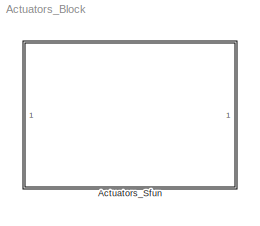
MODEL Actuators_Block
KIND library
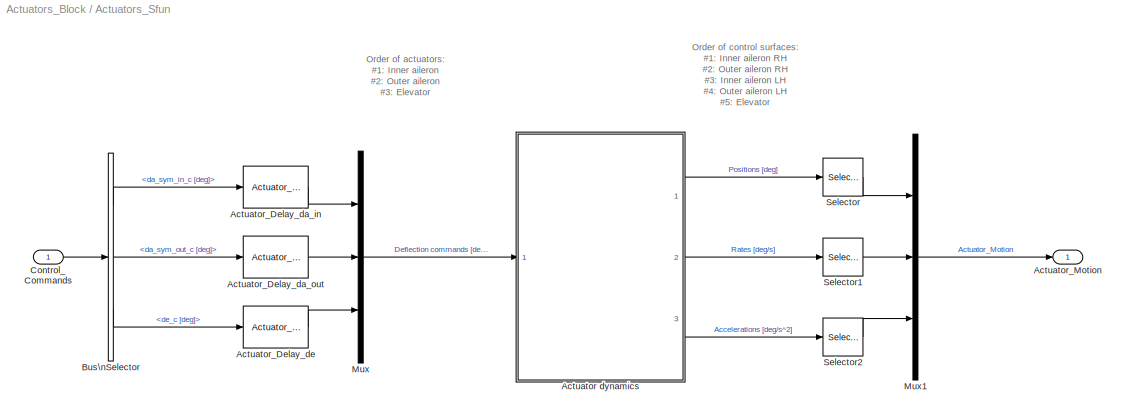
BLOCK [SubSystem] Actuators_Sfun
  Ports = [1, 1]
  RequestExecContextInheritance = off
  SID = 12
  Variant = off
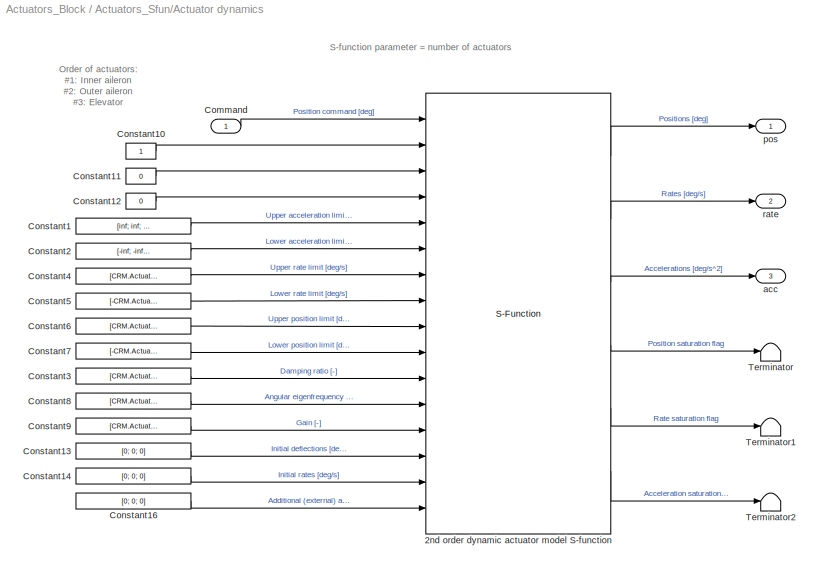
BLOCK [SubSystem] Actuators_Sfun/Actuator dynamics
  Ports = [1, 3]
  RequestExecContextInheritance = off
  SID = 26
  Variant = off
BLOCK [S-Function] Actuators_Sfun/Actuator dynamics/2nd order dynamic actuator model S-function
  EnableBusSupport = off
  FunctionName = sfun_second_order_wLimits
  Parameters = N_Actuators
  Ports = [16, 6]
  SFcnIsStateOwnerBlock = off
  SFunctionDeploymentMode = off
  SID = 64
BLOCK [Inport] Actuators_Sfun/Actuator dynamics/Command
  IconDisplay = Port number
  SID = 27
BLOCK [Constant] Actuators_Sfun/Actuator dynamics/Constant1
  SID = 28
  Value = [inf; inf; inf]
BLOCK [Constant] Actuators_Sfun/Actuator dynamics/Constant10
  OutDataTypeStr = boolean
  SID = 29
BLOCK [Constant] Actuators_Sfun/Actuator dynamics/Constant11
  OutDataTypeStr = boolean
  SID = 30
  Value = 0
BLOCK [Constant] Actuators_Sfun/Actuator dynamics/Constant12
  OutDataTypeStr = boolean
  SID = 31
  Value = 0
BLOCK [Constant] Actuators_Sfun/Actuator dynamics/Constant13
  SID = 32
  Value = [0; 0; 0]
BLOCK [Constant] Actuators_Sfun/Actuator dynamics/Constant14
  SID = 33
  Value = [0; 0; 0]
BLOCK [Constant] Actuators_Sfun/Actuator dynamics/Constant16
  SID = 35
  Value = [0; 0; 0]
BLOCK [Constant] Actuators_Sfun/Actuator dynamics/Constant2
  SID = 36
  Value = [-inf; -inf; -inf]
BLOCK [Constant] Actuators_Sfun/Actuator dynamics/Constant3
  SID = 37
  Value = [CRM.Actuators.InnerAileron.d_SO; CRM.Actuators.OuterAileron.d_SO; CRM.Actuators.Elevator.d_SO]
BLOCK [Constant] Actuators_Sfun/Actuator dynamics/Constant4
  SID = 38
  Value = [CRM.Actuators.InnerAileron.rateLim; CRM.Actuators.OuterAileron.rateLim; CRM.Actuators.Elevator.rateLim]
BLOCK [Constant] Actuators_Sfun/Actuator dynamics/Constant5
  SID = 39
  Value = [-CRM.Actuators.InnerAileron.rateLim; -CRM.Actuators.OuterAileron.rateLim; -CRM.Actuators.Elevator.rateLim]
BLOCK [Constant] Actuators_Sfun/Actuator dynamics/Constant6
  SID = 40
  Value = [CRM.Actuators.InnerAileron.posLim; CRM.Actuators.OuterAileron.posLim; CRM.Actuators.Elevator.posLim]
BLOCK [Constant] Actuators_Sfun/Actuator dynamics/Constant7
  SID = 41
  Value = [-CRM.Actuators.InnerAileron.posLim; -CRM.Actuators.OuterAileron.posLim; -CRM.Actuators.Elevator.posLim]
BLOCK [Constant] Actuators_Sfun/Actuator dynamics/Constant8
  SID = 42
  Value = [CRM.Actuators.InnerAileron.w_SO; CRM.Actuators.OuterAileron.w_SO; CRM.Actuators.Elevator.w_SO]
BLOCK [Constant] Actuators_Sfun/Actuator dynamics/Constant9
  SID = 43
  Value = [CRM.Actuators.InnerAileron.K_st; CRM.Actuators.OuterAileron.K_st; CRM.Actuators.Elevator.K_st]
BLOCK [Terminator] Actuators_Sfun/Actuator dynamics/Terminator
  SID = 45
BLOCK [Terminator] Actuators_Sfun/Actuator dynamics/Terminator1
  SID = 46
BLOCK [Terminator] Actuators_Sfun/Actuator dynamics/Terminator2
  SID = 47
BLOCK [Outport] Actuators_Sfun/Actuator dynamics/acc
  IconDisplay = Port number
  Port = 3
  SID = 50
BLOCK [Outport] Actuators_Sfun/Actuator dynamics/pos
  IconDisplay = Port number
  SID = 48
BLOCK [Outport] Actuators_Sfun/Actuator dynamics/rate
  IconDisplay = Port number
  Port = 2
  SID = 49
BLOCK [Reference] Actuators_Sfun/Actuator_Delay_da_in  REF=lib_Sim_CRM/Actuator_Delay
  Act_Delay = CRM.Actuators.Global_Delay
  Ports = [1, 1]
  SID = 61
  SourceBlock = lib_Sim_CRM/Actuator_Delay
  SourceType = Actuator Delay
BLOCK [Reference] Actuators_Sfun/Actuator_Delay_da_out  REF=lib_Sim_CRM/Actuator_Delay
  Act_Delay = CRM.Actuators.Global_Delay
  Ports = [1, 1]
  SID = 62
  SourceBlock = lib_Sim_CRM/Actuator_Delay
  SourceType = Actuator Delay
BLOCK [Reference] Actuators_Sfun/Actuator_Delay_de  REF=lib_Sim_CRM/Actuator_Delay
  Act_Delay = CRM.Actuators.Global_Delay
  Ports = [1, 1]
  SID = 63
  SourceBlock = lib_Sim_CRM/Actuator_Delay
  SourceType = Actuator Delay
BLOCK [Outport] Actuators_Sfun/Actuator_Motion
  IconDisplay = Port number
  SID = 22
BLOCK [BusSelector] Actuators_Sfun/Bus\nSelector
  OutputSignals = da_sym_in_c [deg],da_sym_out_c [deg],de_c [deg]
  Ports = [1, 3]
  SID = 14
BLOCK [Inport] Actuators_Sfun/Control_Commands
  IconDisplay = Port number
  SID = 13
BLOCK [Mux] Actuators_Sfun/Mux
  DisplayOption = bar
  Inputs = 3
  Ports = [3, 1]
  SID = 53
BLOCK [Mux] Actuators_Sfun/Mux1
  DisplayOption = bar
  Inputs = 3
  Ports = [3, 1]
  SID = 54
BLOCK [Selector] Actuators_Sfun/Selector
  IndexOptions = Index vector (dialog)
  Indices = [1 2 1 2 3]
  InputPortWidth = 3
  OutputSizes = 1
  Ports = [1, 1]
  SID = 55
BLOCK [Selector] Actuators_Sfun/Selector1
  IndexOptions = Index vector (dialog)
  Indices = [1 2 1 2 3]
  InputPortWidth = 3
  OutputSizes = 1
  Ports = [1, 1]
  SID = 56
BLOCK [Selector] Actuators_Sfun/Selector2
  IndexOptions = Index vector (dialog)
  Indices = [1 2 1 2 3]
  InputPortWidth = 3
  OutputSizes = 1
  Ports = [1, 1]
  SID = 57
ANNOTATION Actuators_Sfun: Order of actuators:\n#1: Inner aileron\n#2: Outer aileron\n#3: Elevator
ANNOTATION Actuators_Sfun: Order of control surfaces:\n#1: Inner aileron RH\n#2: Outer aileron RH\n#3: Inner aileron LH\n#4: Outer aileron LH\n#5: Elevator
ANNOTATION Actuators_Sfun/Actuator dynamics: Order of actuators:\n#1: Inner aileron\n#2: Outer aileron\n#3: Elevator
ANNOTATION Actuators_Sfun/Actuator dynamics: S-function parameter = number of actuators
LINE Actuators_Sfun/Actuator dynamics/2nd order dynamic actuator model S-function:1 -> Actuators_Sfun/Actuator dynamics/pos:1
LINE Actuators_Sfun/Actuator dynamics/2nd order dynamic actuator model S-function:2 -> Actuators_Sfun/Actuator dynamics/rate:1
LINE Actuators_Sfun/Actuator dynamics/2nd order dynamic actuator model S-function:3 -> Actuators_Sfun/Actuator dynamics/acc:1
LINE Actuators_Sfun/Actuator dynamics/2nd order dynamic actuator model S-function:4 -> Actuators_Sfun/Actuator dynamics/Terminator:1
LINE Actuators_Sfun/Actuator dynamics/2nd order dynamic actuator model S-function:5 -> Actuators_Sfun/Actuator dynamics/Terminator1:1
LINE Actuators_Sfun/Actuator dynamics/2nd order dynamic actuator model S-function:6 -> Actuators_Sfun/Actuator dynamics/Terminator2:1
LINE Actuators_Sfun/Actuator dynamics/Command:1 -> Actuators_Sfun/Actuator dynamics/2nd order dynamic actuator model S-function:1
LINE Actuators_Sfun/Actuator dynamics/Constant10:1 -> Actuators_Sfun/Actuator dynamics/2nd order dynamic actuator model S-function:2
LINE Actuators_Sfun/Actuator dynamics/Constant11:1 -> Actuators_Sfun/Actuator dynamics/2nd order dynamic actuator model S-function:3
LINE Actuators_Sfun/Actuator dynamics/Constant12:1 -> Actuators_Sfun/Actuator dynamics/2nd order dynamic actuator model S-function:4
LINE Actuators_Sfun/Actuator dynamics/Constant13:1 -> Actuators_Sfun/Actuator dynamics/2nd order dynamic actuator model S-function:14
LINE Actuators_Sfun/Actuator dynamics/Constant14:1 -> Actuators_Sfun/Actuator dynamics/2nd order dynamic actuator model S-function:15
LINE Actuators_Sfun/Actuator dynamics/Constant16:1 -> Actuators_Sfun/Actuator dynamics/2nd order dynamic actuator model S-function:16
LINE Actuators_Sfun/Actuator dynamics/Constant1:1 -> Actuators_Sfun/Actuator dynamics/2nd order dynamic actuator model S-function:5
LINE Actuators_Sfun/Actuator dynamics/Constant2:1 -> Actuators_Sfun/Actuator dynamics/2nd order dynamic actuator model S-function:6
LINE Actuators_Sfun/Actuator dynamics/Constant3:1 -> Actuators_Sfun/Actuator dynamics/2nd order dynamic actuator model S-function:11
LINE Actuators_Sfun/Actuator dynamics/Constant4:1 -> Actuators_Sfun/Actuator dynamics/2nd order dynamic actuator model S-function:7
LINE Actuators_Sfun/Actuator dynamics/Constant5:1 -> Actuators_Sfun/Actuator dynamics/2nd order dynamic actuator model S-function:8
LINE Actuators_Sfun/Actuator dynamics/Constant6:1 -> Actuators_Sfun/Actuator dynamics/2nd order dynamic actuator model S-function:9
LINE Actuators_Sfun/Actuator dynamics/Constant7:1 -> Actuators_Sfun/Actuator dynamics/2nd order dynamic actuator model S-function:10
LINE Actuators_Sfun/Actuator dynamics/Constant8:1 -> Actuators_Sfun/Actuator dynamics/2nd order dynamic actuator model S-function:12
LINE Actuators_Sfun/Actuator dynamics/Constant9:1 -> Actuators_Sfun/Actuator dynamics/2nd order dynamic actuator model S-function:13
LINE Actuators_Sfun/Actuator dynamics:1 -> Actuators_Sfun/Selector:1
LINE Actuators_Sfun/Actuator dynamics:2 -> Actuators_Sfun/Selector1:1
LINE Actuators_Sfun/Actuator dynamics:3 -> Actuators_Sfun/Selector2:1
LINE Actuators_Sfun/Actuator_Delay_da_in:1 -> Actuators_Sfun/Mux:1
LINE Actuators_Sfun/Actuator_Delay_da_out:1 -> Actuators_Sfun/Mux:2
LINE Actuators_Sfun/Actuator_Delay_de:1 -> Actuators_Sfun/Mux:3
LINE Actuators_Sfun/Bus\nSelector:1 -> Actuators_Sfun/Actuator_Delay_da_in:1
LINE Actuators_Sfun/Bus\nSelector:2 -> Actuators_Sfun/Actuator_Delay_da_out:1
LINE Actuators_Sfun/Bus\nSelector:3 -> Actuators_Sfun/Actuator_Delay_de:1
LINE Actuators_Sfun/Control_Commands:1 -> Actuators_Sfun/Bus\nSelector:1
LINE Actuators_Sfun/Mux1:1 -> Actuators_Sfun/Actuator_Motion:1
LINE Actuators_Sfun/Mux:1 -> Actuators_Sfun/Actuator dynamics:1
LINE Actuators_Sfun/Selector1:1 -> Actuators_Sfun/Mux1:2
LINE Actuators_Sfun/Selector2:1 -> Actuators_Sfun/Mux1:3
LINE Actuators_Sfun/Selector:1 -> Actuators_Sfun/Mux1:1
